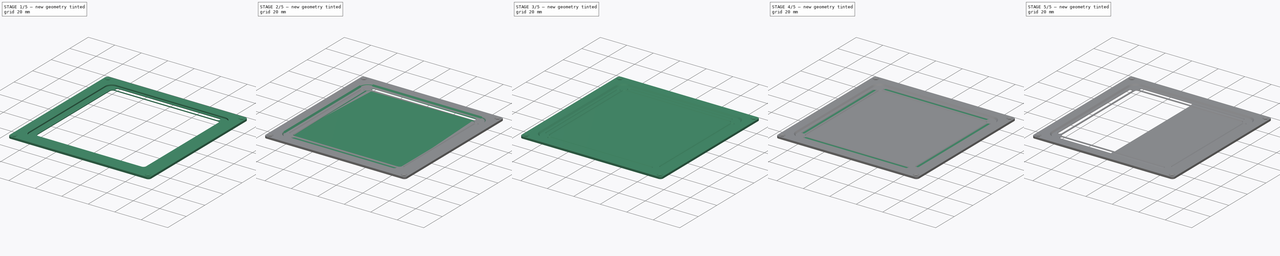
[diagram: build sequence overview — one tinted view per stage of 5, left to right]
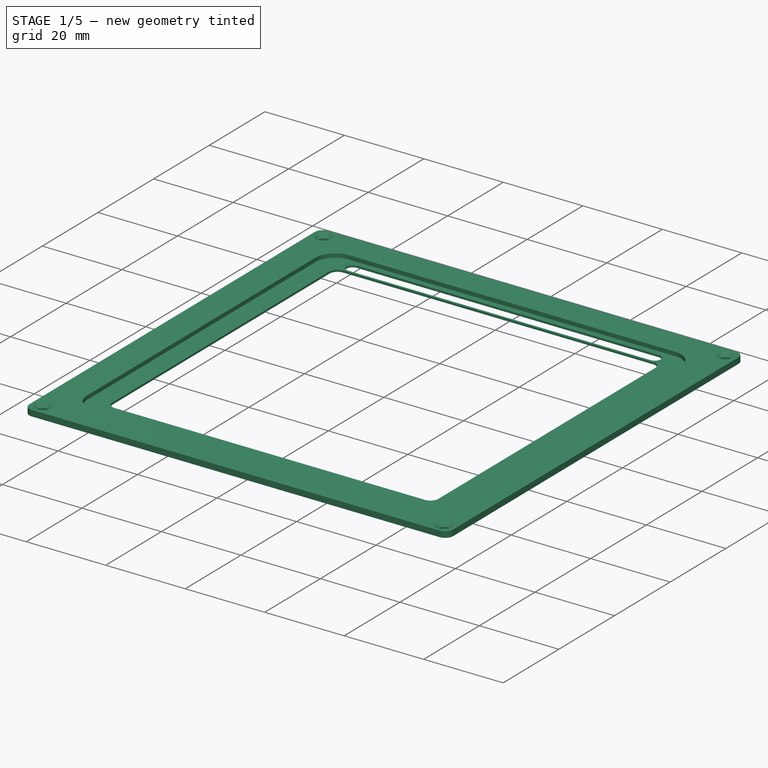
[diagram: stage 1 of 5 — iso view after this stage's code; geometry added in this stage tinted green]
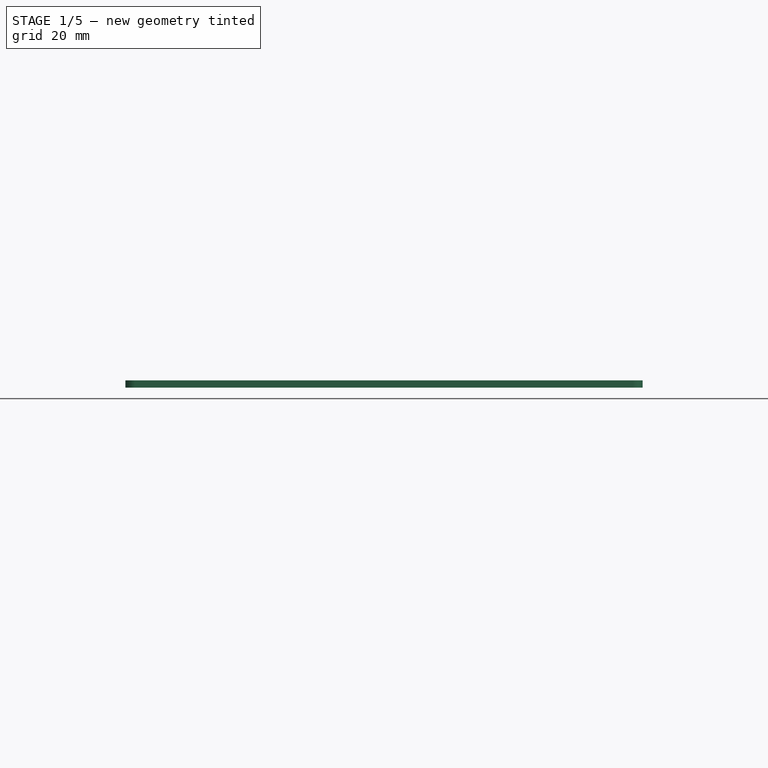
[diagram: stage 1 of 5 — front view after this stage's code; geometry added in this stage tinted green]
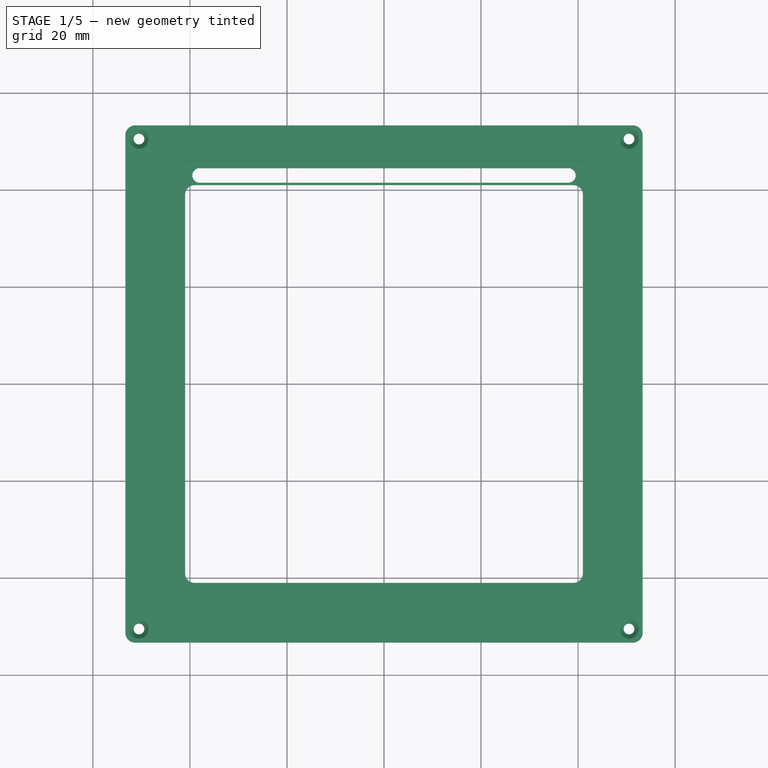
[diagram: stage 1 of 5 — top view after this stage's code; geometry added in this stage tinted green]
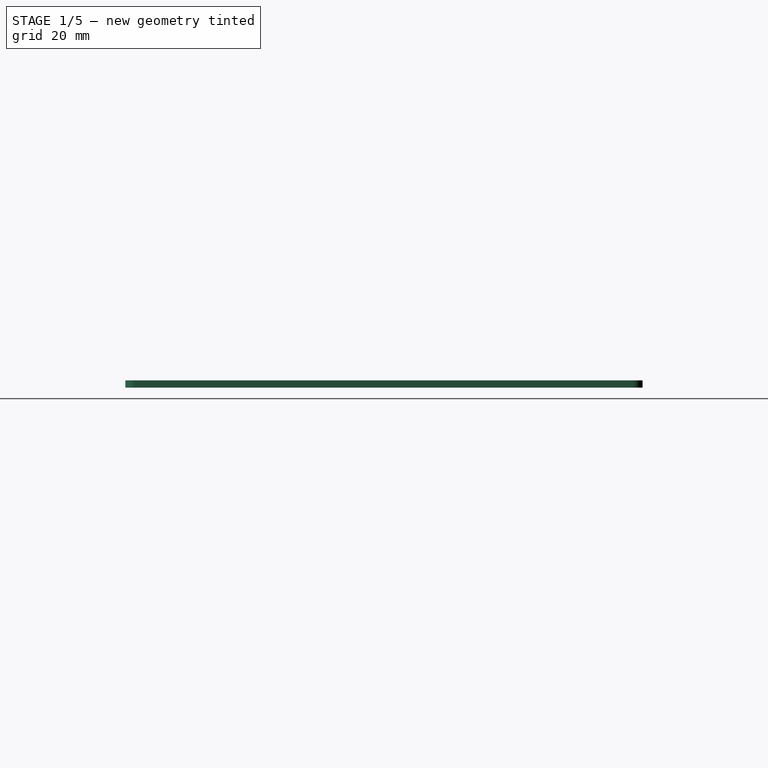
[diagram: stage 1 of 5 — right view after this stage's code; geometry added in this stage tinted green]
FCSTD DOCUMENT  (FreeCAD 0.19R24276 (Git))
Label: XY_Frontpanel_testfit
License: All rights reserved
LicenseURL: http://en.wikipedia.org/wiki/All_rights_reserved
objects: Sketcher::SketchObject×12, PartDesign::Pocket×6, PartDesign::Pad×5, PartDesign::Body×4, PartDesign::Draft×3, PartDesign::PolarPattern×3, PartDesign::Hole×2, App::VRMLObject×2, App::Part×2, PartDesign::Chamfer×2, TechDraw::DrawSVGTemplate×1, PartDesign::Fillet×1, TechDraw::DrawProjGroupItem×1, TechDraw::DrawProjGroup×1, TechDraw::DrawPage×1
note: 57 computed .brp shape members not serialized (recipe doc carries the construction recipe); baked Part::Feature solids carry a one-line shape summary decoded from their .brp

FEATURE [PartDesign::Body] Body001  label="Surface"
  Group = -> [Sketch001,Pad001,Chamfer,Sketch003,Pocket,PolarPattern,Sketch007,Pocket003]
  Origin = -> Origin001
  Tip = -> Pocket003
FEATURE [TechDraw::DrawProjGroupItem] ProjItem  label="Front"
  CoarseView = false
  Direction = (0,0,1)
  Focus = 100
  HardHidden = false
  IsoCount = 0
  IsoHidden = false
  IsoVisible = false
  LockPosition = true
  Perspective = false
  Rotation = 0
  RotationVector = (1,0,0)
  ScaleType = 2
  SeamHidden = false
  SeamVisible = true
  SmoothHidden = false
  SmoothVisible = true
  Source = -> [Body001]
  Type = 0
  X = 0
  XDirection = (1,0,0)
  Y = 0
FEATURE [TechDraw::DrawProjGroup] ProjGroup
  Anchor = -> ProjItem
  AutoDistribute = true
  LockPosition = false
  ProjectionType = 0
  Rotation = 0
  ScaleType = 0
  Source = -> [Body001]
  Views = -> [ProjItem]
  X = 89.4047
  Y = 132.275
  spacingX = 15
  spacingY = 15
FEATURE [TechDraw::DrawPage] Page
  KeepUpdated = true
  NextBalloonIndex = 1
  ProjectionType = 0
  Template = -> Template
  Views = -> [ProjGroup]
FEATURE [Sketcher::SketchObject] Sketch008
  FullyConstrained = true
  MapMode = 5
  Support = -> [XY_Plane005]
  sketch-geometry (22):
    g0: LineSegment StartX=-51.3 StartY=53.3 StartZ=0 EndX=51.3 EndY=53.3 EndZ=0
    g1: LineSegment StartX=53.3 StartY=51.3 StartZ=0 EndX=53.3 EndY=-51.3 EndZ=0
    g2: LineSegment StartX=51.3 StartY=-53.3 StartZ=0 EndX=-51.3 EndY=-53.3 EndZ=0
    g3: LineSegment StartX=-53.3 StartY=-51.3 StartZ=0 EndX=-53.3 EndY=51.3 EndZ=0
    g4: ArcOfCircle CenterX=-51.3 CenterY=51.3 CenterZ=0 NormalX=0 NormalY=0 NormalZ=1 AngleXU=0 Radius=2 StartAngle=1.5708 EndAngle=3.14159
    g5: ArcOfCircle CenterX=51.3 CenterY=51.3 CenterZ=0 NormalX=0 NormalY=0 NormalZ=1 AngleXU=0 Radius=2 StartAngle=1e-16 EndAngle=1.5708
    g6: ArcOfCircle CenterX=51.3 CenterY=-51.3 CenterZ=0 NormalX=0 NormalY=0 NormalZ=1 AngleXU=0 Radius=2 StartAngle=4.71239 EndAngle=6.28319
    g7: ArcOfCircle CenterX=-51.3 CenterY=-51.3 CenterZ=0 NormalX=0 NormalY=0 NormalZ=1 AngleXU=0 Radius=2 StartAngle=3.14159 EndAngle=4.71239
    g8: LineSegment StartX=-51.3 StartY=51.3 StartZ=0 EndX=0 EndY=0 EndZ=0
    g9: LineSegment StartX=0 StartY=0 StartZ=0 EndX=51.3 EndY=51.3 EndZ=0
    g10: LineSegment StartX=0 StartY=0 StartZ=0 EndX=-51.3 EndY=-51.3 EndZ=0
    g11: LineSegment StartX=-39 StartY=41 StartZ=0 EndX=39 EndY=41 EndZ=0
    g12: LineSegment StartX=41 StartY=39 StartZ=0 EndX=41 EndY=-39 EndZ=0
    g13: LineSegment StartX=39 StartY=-41 StartZ=0 EndX=-39 EndY=-41 EndZ=0
    g14: LineSegment StartX=-41 StartY=-39 StartZ=0 EndX=-41 EndY=39 EndZ=0
    g15: ArcOfCircle CenterX=-39 CenterY=39 CenterZ=0 NormalX=0 NormalY=0 NormalZ=1 AngleXU=0 Radius=2 StartAngle=1.5708 EndAngle=3.14159
    g16: ArcOfCircle CenterX=39 CenterY=39 CenterZ=0 NormalX=0 NormalY=0 NormalZ=1 AngleXU=0 Radius=2 StartAngle=0 EndAngle=1.5708
    g17: ArcOfCircle CenterX=39 CenterY=-39 CenterZ=0 NormalX=0 NormalY=0 NormalZ=1 AngleXU=0 Radius=2 StartAngle=4.71239 EndAngle=6.28319
    g18: ArcOfCircle CenterX=-39 CenterY=-39 CenterZ=0 NormalX=0 NormalY=0 NormalZ=1 AngleXU=0 Radius=2 StartAngle=3.14159 EndAngle=4.71239
    g19: LineSegment StartX=-39 StartY=39 StartZ=0 EndX=0 EndY=0 EndZ=0
    g20: LineSegment StartX=0 StartY=0 StartZ=0 EndX=39 EndY=39 EndZ=0
    g21: LineSegment StartX=-39 StartY=-39 StartZ=0 EndX=0 EndY=0 EndZ=0
  constraints (52):
    c: Horizontal(g0)
    c: Horizontal(g2)
    c: Vertical(g1)
    c: Vertical(g3)
    c: Tangent(g3,g4) = 1.5708
    c: Tangent(g0,g4) = 1.5708
    c: Tangent(g0,g5) = 1.5708
    c: Tangent(g1,g5) = 1.5708
    c: Tangent(g1,g6) = 1.5708
    c: Tangent(g2,g6) = 1.5708
    c: Tangent(g2,g7) = 1.5708
    c: Tangent(g3,g7) = 1.5708
    c: Coincident(g8,g4)
    c: Coincident(g8,g9)
    c: Coincident(g9,g5)
    c: Coincident(g8,g-1)
    c: Coincident(g10,g-1)
    c: Coincident(g10,g7)
    c: Equal(g10,g8)
    c: Equal(g8,g9)
    c: Equal(g0,g3)
    c: Equal(g4,g5)
    c: Equal(g5,g6)
    c: Equal(g6,g7)
    c: Radius(g4) = 2
    c: DistanceX(g3,g1) = 106.6
    c: Horizontal(g11)
    c: Horizontal(g13)
    c: Vertical(g12)
    c: Vertical(g14)
    c: Tangent(g14,g15) = 1.5708
    c: Tangent(g11,g15) = 1.5708
    c: Tangent(g11,g16) = 1.5708
    c: Tangent(g12,g16) = 1.5708
    c: Tangent(g12,g17) = 1.5708
    c: Tangent(g13,g17) = 1.5708
    c: Tangent(g13,g18) = 1.5708
    c: Tangent(g14,g18) = 1.5708
    c: Coincident(g19,g15)
    c: Coincident(g19,g-1)
    c: Coincident(g19,g20)
    c: Coincident(g20,g16)
    c: Coincident(g21,g18)
    c: Coincident(g21,g-1)
    c: Equal(g21,g19)
    c: Equal(g19,g20)
    c: Equal(g14,g11)
    c: Equal(g15,g16)
    c: Equal(g16,g17)
    c: Equal(g17,g18)
    c: Radius(g15) = 2
    c: DistanceX(g14,g12) = 82
FEATURE [PartDesign::Pad] Pad004
  AllowMultiFace = false
  Direction = (1,1,1)
  Length = 1.5
  Length2 = 100
  Profile = -> Sketch008
  Type = 0
FEATURE [Sketcher::SketchObject] Sketch009
  FullyConstrained = true
  MapMode = 5
  Placement = pos=(0,0,1.5) rot=(0,0,1;0rad)
  sketch-geometry (9):
    g0: LineSegment StartX=-50.5 StartY=50.5 StartZ=0 EndX=-50.5 EndY=-50.5 EndZ=0
    g1: LineSegment StartX=-50.5 StartY=-50.5 StartZ=0 EndX=50.5 EndY=-50.5 EndZ=0
    g2: LineSegment StartX=50.5 StartY=-50.5 StartZ=0 EndX=50.5 EndY=50.5 EndZ=0
    g3: LineSegment StartX=50.5 StartY=50.5 StartZ=0 EndX=-50.5 EndY=50.5 EndZ=0
    g4: Circle CenterX=0 CenterY=0 CenterZ=0 NormalX=0 NormalY=0 NormalZ=1 AngleXU=0 Radius=71.4178
    g5: Circle CenterX=-50.5 CenterY=50.5 CenterZ=0 NormalX=0 NormalY=0 NormalZ=1 AngleXU=0 Radius=5
    g6: Circle CenterX=50.5 CenterY=50.5 CenterZ=0 NormalX=0 NormalY=0 NormalZ=1 AngleXU=0 Radius=5
    g7: Circle CenterX=50.5 CenterY=-50.5 CenterZ=0 NormalX=0 NormalY=0 NormalZ=1 AngleXU=0 Radius=5
    g8: Circle CenterX=-50.5 CenterY=-50.5 CenterZ=0 NormalX=0 NormalY=0 NormalZ=1 AngleXU=0 Radius=5
  constraints (22):
    c: Coincident(g0,g1)
    c: Coincident(g1,g2)
    c: Coincident(g2,g3)
    c: Coincident(g3,g0)
    c: Equal(g0,g1)
    c: Equal(g0,g2)
    c: Equal(g0,g3)
    c: PointOnObject(g0,g4)
    c: PointOnObject(g1,g4)
    c: PointOnObject(g2,g4)
    c: PointOnObject(g3,g4)
    c: Horizontal(g3)
    c: Coincident(g4,g-1)
    c: Coincident(g5,g0)
    c: Coincident(g6,g2)
    c: Coincident(g7,g1)
    c: Coincident(g8,g0)
    c: DistanceX(g3,g3) = 101
    c: Diameter(g5) = 10
    c: Equal(g5,g6)
    c: Equal(g5,g7)
    c: Equal(g5,g8)
FEATURE [PartDesign::Hole] Hole001
  AllowMultiFace = false
  BaseFeature = -> Pad004
  Depth = 25
  DepthType = 1
  Diameter = 2.2
  DrillForDepth = false
  DrillPoint = 0
  DrillPointAngle = 118
  HoleCutCountersinkAngle = 90
  HoleCutCustomValues = false
  HoleCutDepth = 0
  HoleCutDiameter = 4
  HoleCutType = 2
  ModelActualThread = false
  Profile = -> Sketch009
  Tapered = false
  TaperedAngle = 90
  ThreadAngle = 0
  ThreadClass = 0
  ThreadCutOffInner = 0
  ThreadCutOffOuter = 0
  ThreadDirection = 0
  ThreadFit = 0
  ThreadPitch = 0
  ThreadSize = 0
  ThreadType = 0
  Threaded = false
FEATURE [Sketcher::SketchObject] Sketch010
  FullyConstrained = true
  MapMode = 5
  Placement = pos=(0,0,1.5) rot=(0,0,1;0rad)
  Support = -> [Hole001]
  sketch-geometry (11):
    g0: LineSegment StartX=-41 StartY=46 StartZ=0 EndX=41 EndY=46 EndZ=0
    g1: LineSegment StartX=46 StartY=41 StartZ=0 EndX=46 EndY=-41 EndZ=0
    g2: LineSegment StartX=41 StartY=-46 StartZ=0 EndX=-41 EndY=-46 EndZ=0
    g3: LineSegment StartX=-46 StartY=-41 StartZ=0 EndX=-46 EndY=41 EndZ=0
    g4: ArcOfCircle CenterX=-41 CenterY=41 CenterZ=0 NormalX=0 NormalY=0 NormalZ=1 AngleXU=0 Radius=5 StartAngle=1.5708 EndAngle=3.14159
    g5: ArcOfCircle CenterX=41 CenterY=41 CenterZ=0 NormalX=0 NormalY=0 NormalZ=1 AngleXU=0 Radius=5 StartAngle=1e-16 EndAngle=1.5708
    g6: ArcOfCircle CenterX=41 CenterY=-41 CenterZ=0 NormalX=0 NormalY=0 NormalZ=1 AngleXU=0 Radius=5 StartAngle=4.71239 EndAngle=6.28319
    g7: ArcOfCircle CenterX=-41 CenterY=-41 CenterZ=0 NormalX=0 NormalY=0 NormalZ=1 AngleXU=0 Radius=5 StartAngle=3.14159 EndAngle=4.71239
    g8: LineSegment StartX=-41 StartY=41 StartZ=0 EndX=0 EndY=0 EndZ=0
    g9: LineSegment StartX=0 StartY=0 StartZ=0 EndX=41 EndY=41 EndZ=0
    g10: LineSegment StartX=0 StartY=0 StartZ=0 EndX=-41 EndY=-41 EndZ=0
  constraints (26):
    c: Horizontal(g0)
    c: Horizontal(g2)
    c: Vertical(g1)
    c: Vertical(g3)
    c: Tangent(g3,g4) = 1.5708
    c: Tangent(g0,g4) = 1.5708
    c: Tangent(g0,g5) = 1.5708
    c: Tangent(g1,g5) = 1.5708
    c: Tangent(g1,g6) = 1.5708
    c: Tangent(g2,g6) = 1.5708
    c: Tangent(g2,g7) = 1.5708
    c: Tangent(g3,g7) = 1.5708
    c: Radius(g7) = 5
    c: Equal(g7,g4)
    c: Equal(g7,g5)
    c: Equal(g7,g6)
    c: Equal(g0,g3)
    c: DistanceX(g3,g1) = 92
    c: Coincident(g8,g4)
    c: Coincident(g8,g-1)
    c: Coincident(g8,g9)
    c: Coincident(g9,g5)
    c: Coincident(g-1,g10)
    c: Coincident(g10,g7)
    c: Equal(g10,g8)
    c: Equal(g8,g9)
FEATURE [PartDesign::Pocket] Pocket004
  BaseFeature = -> Hole001
  Length = 1
  Length2 = 100
  Profile = -> Sketch010
  Type = 0
FEATURE [Sketcher::SketchObject] Sketch011
  FullyConstrained = true
  MapMode = 5
  Placement = pos=(0,0,0.5) rot=(0,0,1;0rad)
  Support = -> [Pocket004]
  sketch-geometry (6):
    g0: LineSegment StartX=-38 StartY=43 StartZ=0 EndX=0 EndY=0 EndZ=0
    g1: LineSegment StartX=0 StartY=0 StartZ=0 EndX=38 EndY=43 EndZ=0
    g2: ArcOfCircle CenterX=-38 CenterY=43 CenterZ=0 NormalX=0 NormalY=0 NormalZ=1 AngleXU=0 Radius=1.5 StartAngle=1.5708 EndAngle=4.71239
    g3: ArcOfCircle CenterX=38 CenterY=43 CenterZ=0 NormalX=0 NormalY=0 NormalZ=1 AngleXU=0 Radius=1.5 StartAngle=4.71239 EndAngle=7.85398
    g4: LineSegment StartX=-38 StartY=41.5 StartZ=0 EndX=38 EndY=41.5 EndZ=0
    g5: LineSegment StartX=-38 StartY=44.5 StartZ=0 EndX=38 EndY=44.5 EndZ=0
  constraints (14):
    c: Coincident(g0,g-1)
    c: Coincident(g0,g1)
    c: Tangent(g2,g5) = 1.5708
    c: Tangent(g2,g4) = -1.5708
    c: Tangent(g4,g3) = -1.5708
    c: Tangent(g5,g3) = 1.5708
    c: Horizontal(g4)
    c: Equal(g2,g3)
    c: Coincident(g2,g0)
    c: Coincident(g1,g3)
    c: Equal(g1,g0)
    c: DistanceX(g5,g5) = 76
    c: Diameter(g2) = 3
    c: DistanceY(g-1,g2) = 43
FEATURE [PartDesign::Pocket] Pocket005
  BaseFeature = -> Pocket004
  Length = 5
  Length2 = 100
  Profile = -> Sketch011
  Type = 0
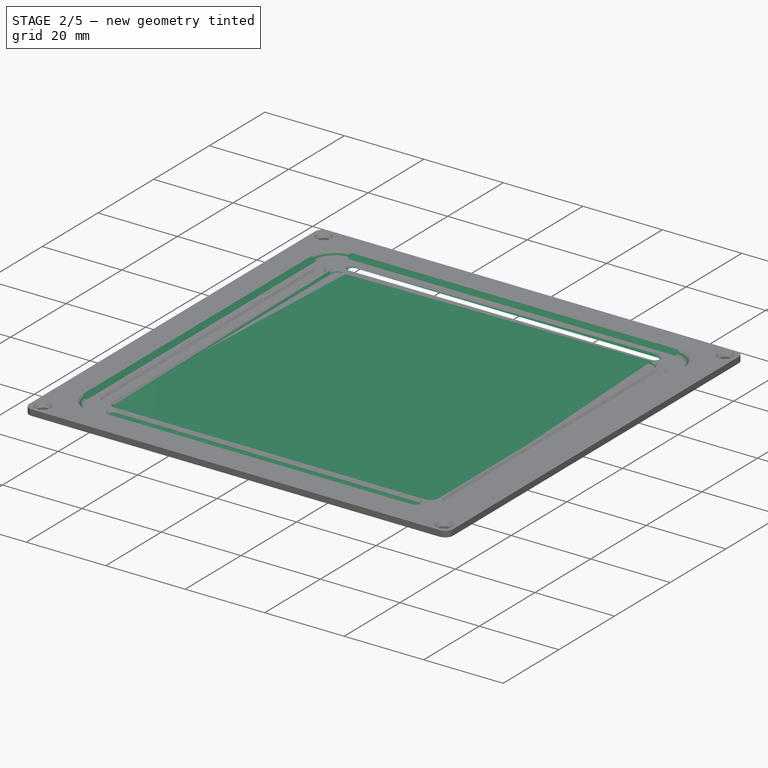
[diagram: stage 2 of 5 — iso view after this stage's code; geometry added in this stage tinted green]
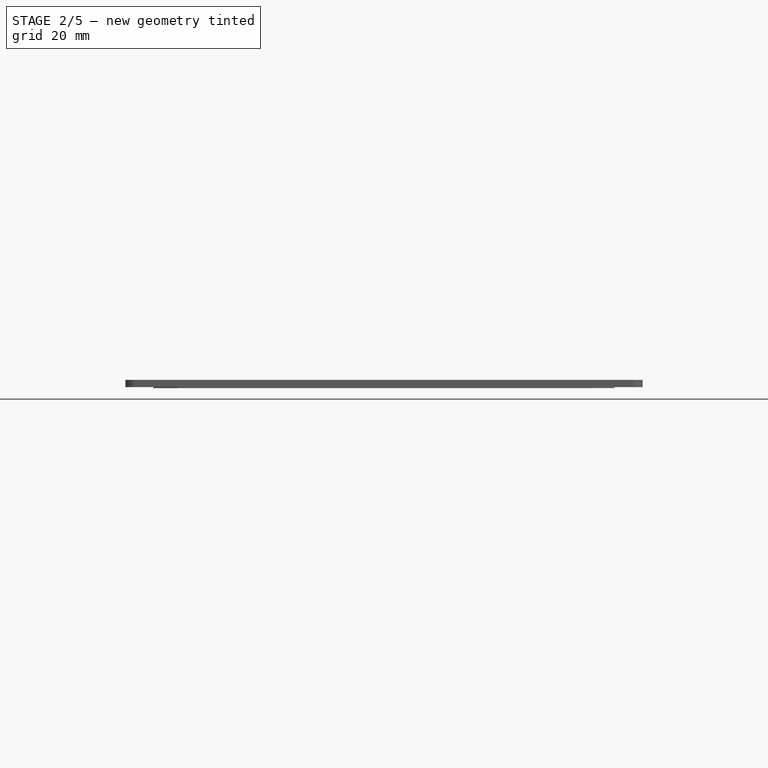
[diagram: stage 2 of 5 — front view after this stage's code; geometry added in this stage tinted green]
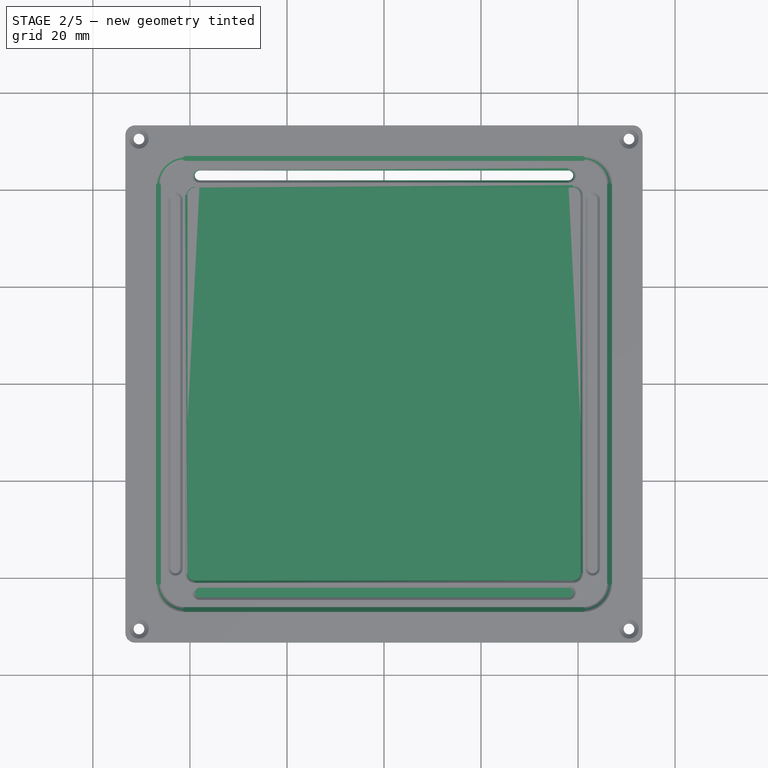
[diagram: stage 2 of 5 — top view after this stage's code; geometry added in this stage tinted green]
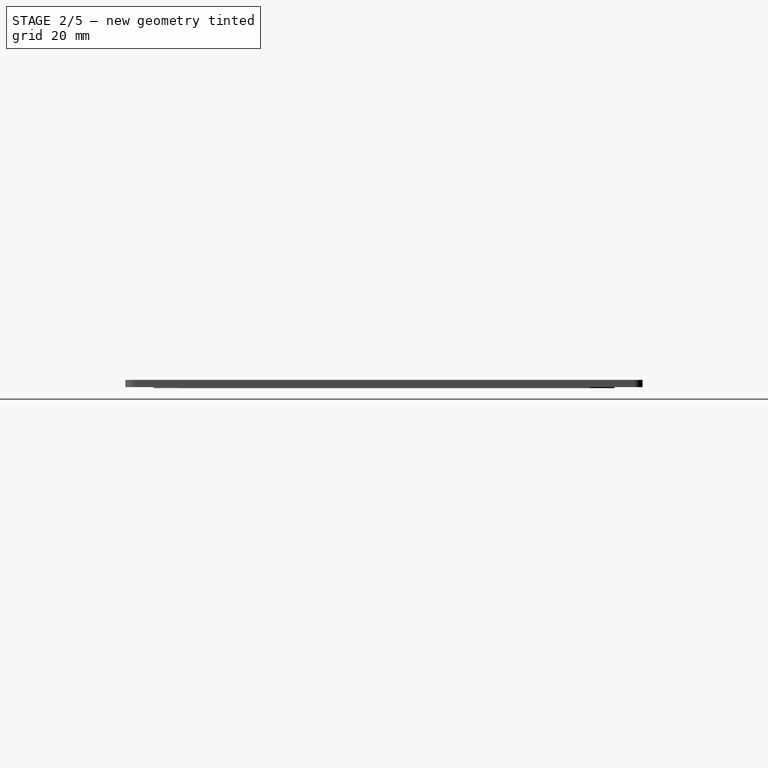
[diagram: stage 2 of 5 — right view after this stage's code; geometry added in this stage tinted green]
FEATURE [Sketcher::SketchObject] Sketch001
  FullyConstrained = true
  MapMode = 5
  Support = -> [XY_Plane001]
  sketch-geometry (5):
    g0: LineSegment StartX=47.5 StartY=-47.5 StartZ=0 EndX=47.5 EndY=47.5 EndZ=0
    g1: LineSegment StartX=47.5 StartY=47.5 StartZ=0 EndX=-47.5 EndY=47.5 EndZ=0
    g2: LineSegment StartX=-47.5 StartY=47.5 StartZ=0 EndX=-47.5 EndY=-47.5 EndZ=0
    g3: LineSegment StartX=-47.5 StartY=-47.5 StartZ=0 EndX=47.5 EndY=-47.5 EndZ=0
    g4: Circle CenterX=0 CenterY=0 CenterZ=0 NormalX=0 NormalY=0 NormalZ=1 AngleXU=0 Radius=67.1751
  constraints (14):
    c: Coincident(g0,g1)
    c: Coincident(g1,g2)
    c: Coincident(g2,g3)
    c: Coincident(g3,g0)
    c: Equal(g0,g1)
    c: Equal(g0,g2)
    c: Equal(g0,g3)
    c: PointOnObject(g0,g4)
    c: PointOnObject(g1,g4)
    c: PointOnObject(g2,g4)
    c: PointOnObject(g3,g4)
    c: Horizontal(g1)
    c: Coincident(g4,g-1)
    c: DistanceX(g1,g1) = 95
FEATURE [PartDesign::Pad] Pad001
  AllowMultiFace = false
  Direction = (1,1,1)
  Length = 0.2
  Length2 = 100
  Profile = -> Sketch001
  Reversed = true
  Type = 0
FEATURE [PartDesign::Body] Body  label="Alu"
  Group = -> [Sketch,Pad,Draft,Sketch002,Hole]
  Origin = -> Origin
  Tip = -> Hole
FEATURE [App::VRMLObject] XY_LED
FEATURE [App::VRMLObject] XY_TOUCH
FEATURE [App::Part] Part  label="LED"
  Group = -> [XY_LED]
  Origin = -> Origin002
  Placement = pos=(0,0,-2) rot=(0,0,1;0rad)
FEATURE [App::Part] Part001  label="TOUCH"
  Group = -> [XY_TOUCH]
  Origin = -> Origin003
  Placement = pos=(0,0,-0.7) rot=(0,0,1;0rad)
FEATURE [PartDesign::Chamfer] Chamfer
  Angle = 45
  Base = -> Pad001 [Edge5,Edge2,Edge8,Edge1]
  BaseFeature = -> Pad001
  ChamferType = 0
  FlipDirection = false
  Size = 5
  Size2 = 1
  SupportTransform = false
FEATURE [Sketcher::SketchObject] Sketch003
  FullyConstrained = true
  MapMode = 5
  Support = -> [Chamfer]
  sketch-geometry (6):
    g0: ArcOfCircle CenterX=-38 CenterY=43 CenterZ=0 NormalX=0 NormalY=0 NormalZ=1 AngleXU=0 Radius=1.5 StartAngle=1.5708 EndAngle=4.71239
    g1: ArcOfCircle CenterX=38 CenterY=43 CenterZ=0 NormalX=0 NormalY=0 NormalZ=1 AngleXU=0 Radius=1.5 StartAngle=4.71239 EndAngle=7.85398
    g2: LineSegment StartX=-38 StartY=41.5 StartZ=0 EndX=38 EndY=41.5 EndZ=0
    g3: LineSegment StartX=-38 StartY=44.5 StartZ=0 EndX=38 EndY=44.5 EndZ=0
    g4: LineSegment StartX=-38 StartY=43 StartZ=0 EndX=0 EndY=0 EndZ=0
    g5: LineSegment StartX=0 StartY=0 StartZ=0 EndX=38 EndY=43 EndZ=0
  constraints (14):
    c: Tangent(g0,g3)
    c: Tangent(g0,g2)
    c: Tangent(g2,g1)
    c: Tangent(g3,g1)
    c: Horizontal(g2)
    c: Equal(g0,g1)
    c: DistanceY(g-1,g0) = 43
    c: DistanceY(g0,g0) = 3
    c: DistanceX(g0,g1) = 76
    c: Coincident(g4,g0)
    c: Coincident(g4,g-1)
    c: Coincident(g4,g5)
    c: Coincident(g5,g1)
    c: Equal(g5,g4)
FEATURE [PartDesign::Pocket] Pocket
  BaseFeature = -> Chamfer
  Length = 5
  Length2 = 100
  Profile = -> Sketch003
  Type = 0
FEATURE [PartDesign::PolarPattern] PolarPattern002
  Angle = 360
  Axis = -> Sketch011 [N_Axis]
  BaseFeature = -> Pocket005
  Occurrences = 4
  Originals = -> [Pocket005]
FEATURE [PartDesign::Draft] Draft002
  Angle = 45
  Base = -> PolarPattern002 [Face43,Face44,Face42,Face25,Face27,Face23,Face29,Face45,Face46,Face28,Face47,Face26,Face48,Face24,Face22,Face49,Face18,Face17,Face14,Face12,Face13,Face32,Face30,Face31,Face36,Face34,Face35,Face20,Face37,Face19,Face33,Face15]
  BaseFeature = -> PolarPattern002
  NeutralPlane = -> PolarPattern002 [Face51]
  Reversed = true
  SupportTransform = false
FEATURE [PartDesign::Body] Body003  label="Alu001"
  Group = -> [Sketch008,Pad004,Sketch009,Hole001,Sketch010,Pocket004,Sketch011,Pocket005,PolarPattern002,Draft002]
  Origin = -> Origin005
  Tip = -> Draft002
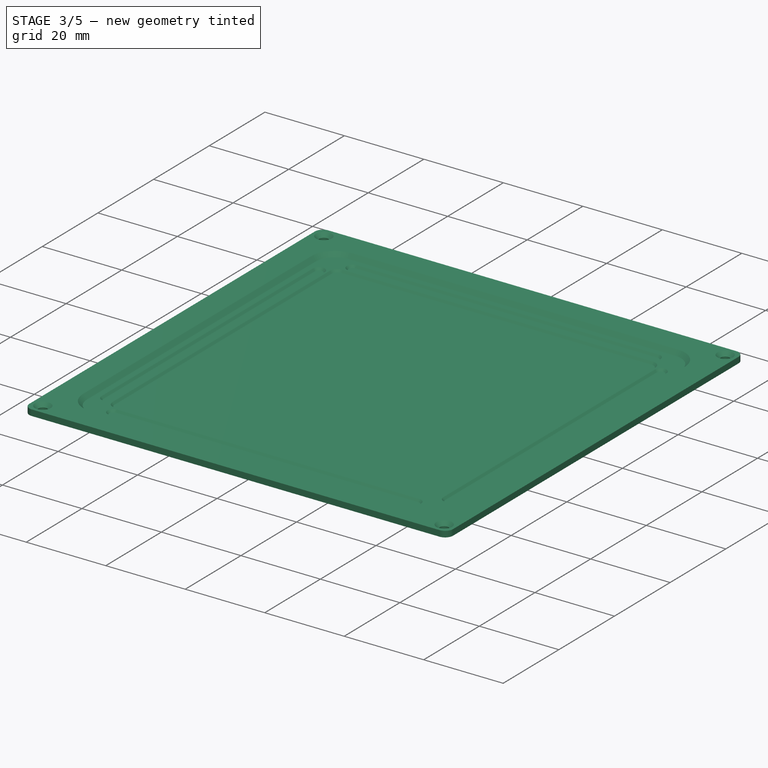
[diagram: stage 3 of 5 — iso view after this stage's code; geometry added in this stage tinted green]
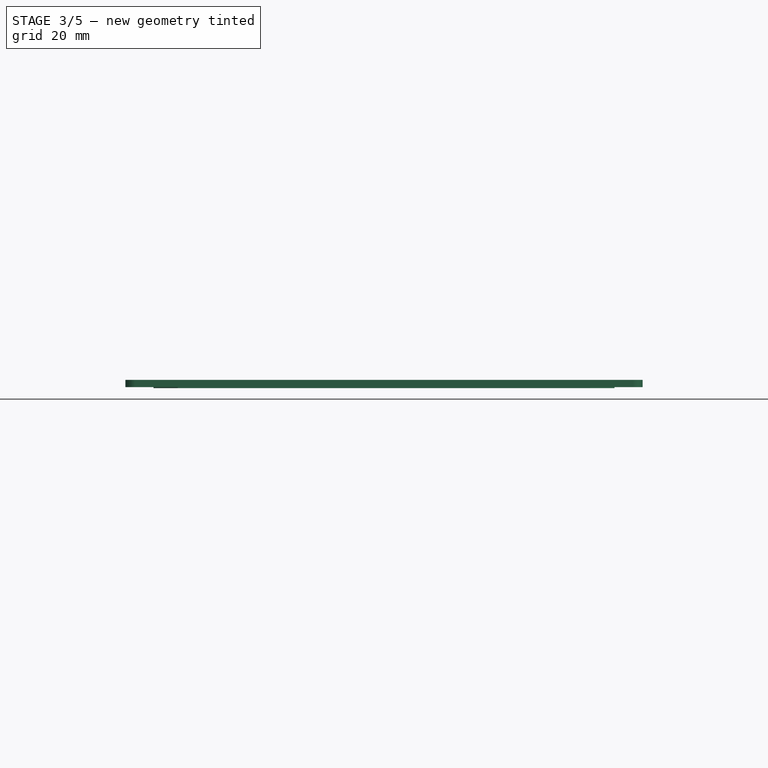
[diagram: stage 3 of 5 — front view after this stage's code; geometry added in this stage tinted green]
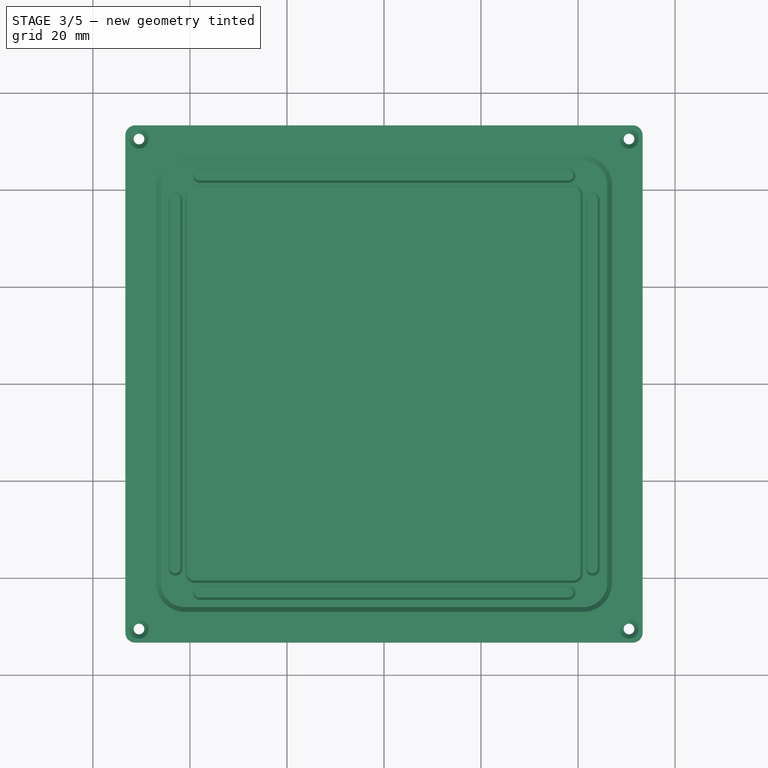
[diagram: stage 3 of 5 — top view after this stage's code; geometry added in this stage tinted green]
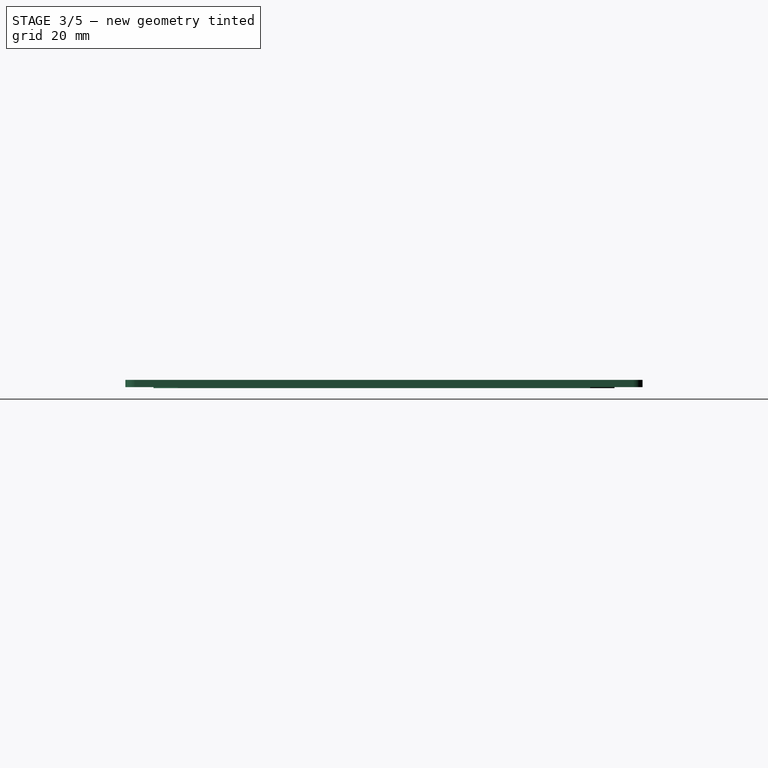
[diagram: stage 3 of 5 — right view after this stage's code; geometry added in this stage tinted green]
FEATURE [PartDesign::PolarPattern] PolarPattern
  Angle = 360
  Axis = -> Sketch003 [N_Axis]
  BaseFeature = -> Pocket
  Occurrences = 4
  Originals = -> [Pocket]
FEATURE [TechDraw::DrawSVGTemplate] Template
  EditableTexts = Designed_by_Name=Designed by Name; Drawing_number=Drawing number; FC-Date=Date; FC-SC=Scale; FC-SH=Sheet; FC-Title=Title; Subtitle=Subtitle; Weight=Weight
  Height = 210
  Orientation = 1
  Width = 297
FEATURE [Sketcher::SketchObject] Sketch004
  FullyConstrained = false
  MapMode = 5
  Support = -> [XY_Plane004]
  sketch-geometry (5):
    g0: LineSegment StartX=47.5 StartY=-47.5 StartZ=0 EndX=47.5 EndY=47.5 EndZ=0
    g1: LineSegment StartX=47.5 StartY=47.5 StartZ=0 EndX=-47.5 EndY=47.5 EndZ=0
    g2: LineSegment StartX=-47.5 StartY=47.5 StartZ=0 EndX=-47.5 EndY=-47.5 EndZ=0
    g3: LineSegment StartX=-47.5 StartY=-47.5 StartZ=0 EndX=47.5 EndY=-47.5 EndZ=0
    g4: Circle CenterX=0 CenterY=0 CenterZ=0 NormalX=0 NormalY=0 NormalZ=1 AngleXU=0 Radius=67.1751
  constraints (14):
    c: Coincident(g0,g1)
    c: Coincident(g1,g2)
    c: Coincident(g2,g3)
    c: Coincident(g3,g0)
    c: Equal(g0,g1)
    c: Equal(g0,g2)
    c: Equal(g0,g3)
    c: PointOnObject(g0,g4)
    c: PointOnObject(g1,g4)
    c: PointOnObject(g2,g4)
    c: PointOnObject(g3,g4)
    c: Horizontal(g1)
    c: Coincident(g4,g-1)
    c: DistanceX(g1,g1) = 95
FEATURE [PartDesign::Pad] Pad002
  AllowMultiFace = false
  Direction = (1,1,1)
  Length = 0.2
  Length2 = 100
  Profile = -> Sketch004
  Reversed = true
  Type = 0
FEATURE [PartDesign::Chamfer] Chamfer001
  Angle = 45
  Base = -> Pad002 [Edge5,Edge2,Edge8,Edge1]
  BaseFeature = -> Pad002
  ChamferType = 0
  FlipDirection = false
  Size = 5
  Size2 = 1
  SupportTransform = false
FEATURE [PartDesign::Body] Body002  label="Surface001"
  Group = -> [Sketch004,Pad002,Chamfer001,Sketch005,Pad003,PolarPattern001,Draft001,Fillet,Pocket001,Sketch006,Pocket002]
  Origin = -> Origin004
  Tip = -> Pocket002
FEATURE [Sketcher::SketchObject] Sketch007
  FullyConstrained = false
  MapMode = 5
  Placement = pos=(0,0,0) rot=(0.57735,0.57735,0.57735;2.0944rad)
  Support = -> [YZ_Plane001]
  sketch-geometry (4):
    g0: LineSegment StartX=-67.1532 StartY=17.8275 StartZ=0 EndX=62.4538 EndY=17.8275 EndZ=0
    g1: LineSegment StartX=62.4538 StartY=17.8275 StartZ=0 EndX=62.4538 EndY=-6.52196 EndZ=0
    g2: LineSegment StartX=62.4538 StartY=-6.52196 StartZ=0 EndX=-67.1532 EndY=-6.52196 EndZ=0
    g3: LineSegment StartX=-67.1532 StartY=-6.52196 StartZ=0 EndX=-67.1532 EndY=17.8275 EndZ=0
  constraints (8):
    c: Coincident(g0,g1)
    c: Coincident(g1,g2)
    c: Coincident(g2,g3)
    c: Coincident(g3,g0)
    c: Horizontal(g0)
    c: Horizontal(g2)
    c: Vertical(g1)
    c: Vertical(g3)
FEATURE [PartDesign::Pocket] Pocket003
  BaseFeature = -> PolarPattern
  Length = 5
  Length2 = 100
  Profile = -> Sketch007
  Type = 1
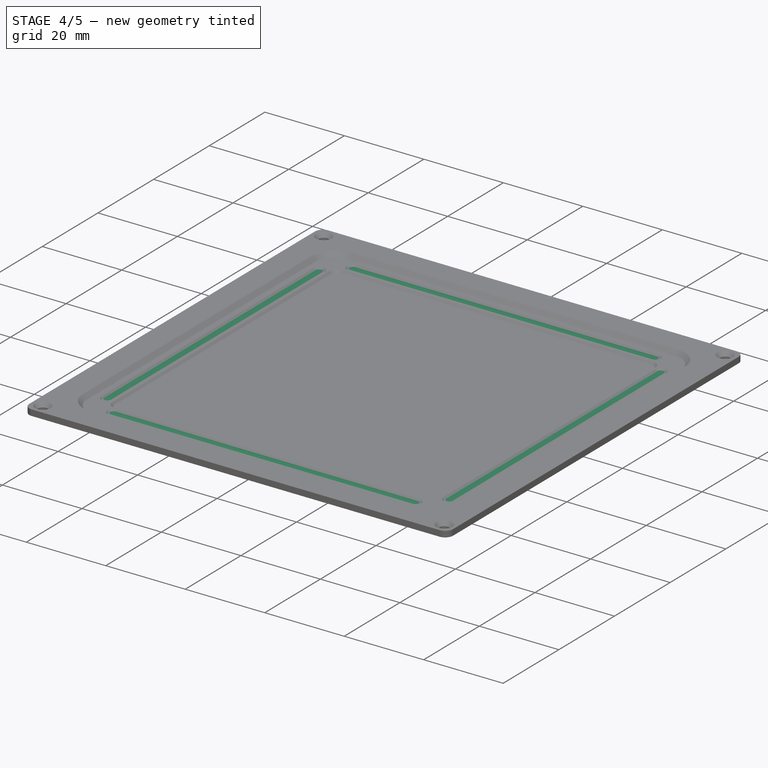
[diagram: stage 4 of 5 — iso view after this stage's code; geometry added in this stage tinted green]
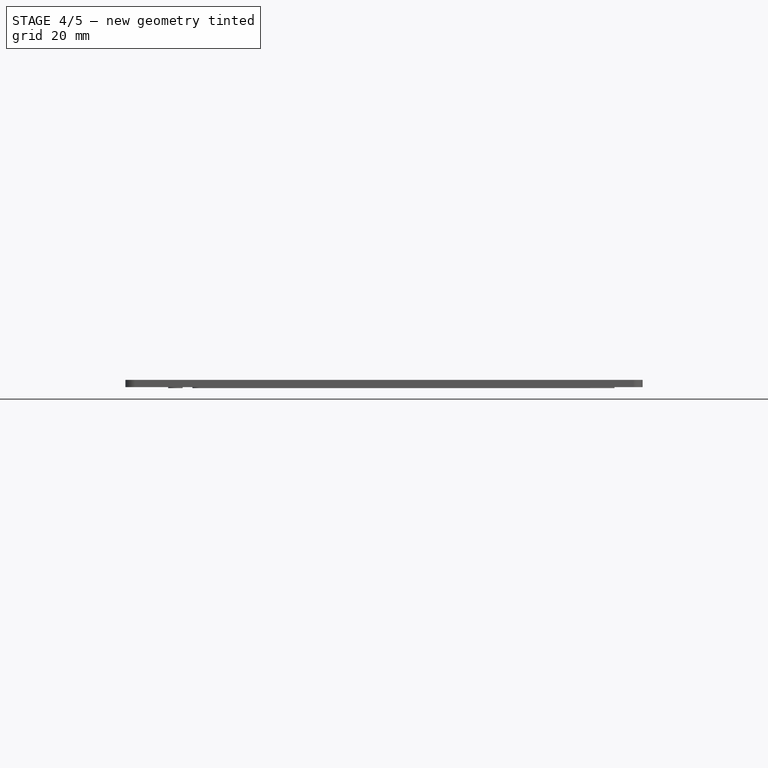
[diagram: stage 4 of 5 — front view after this stage's code; geometry added in this stage tinted green]
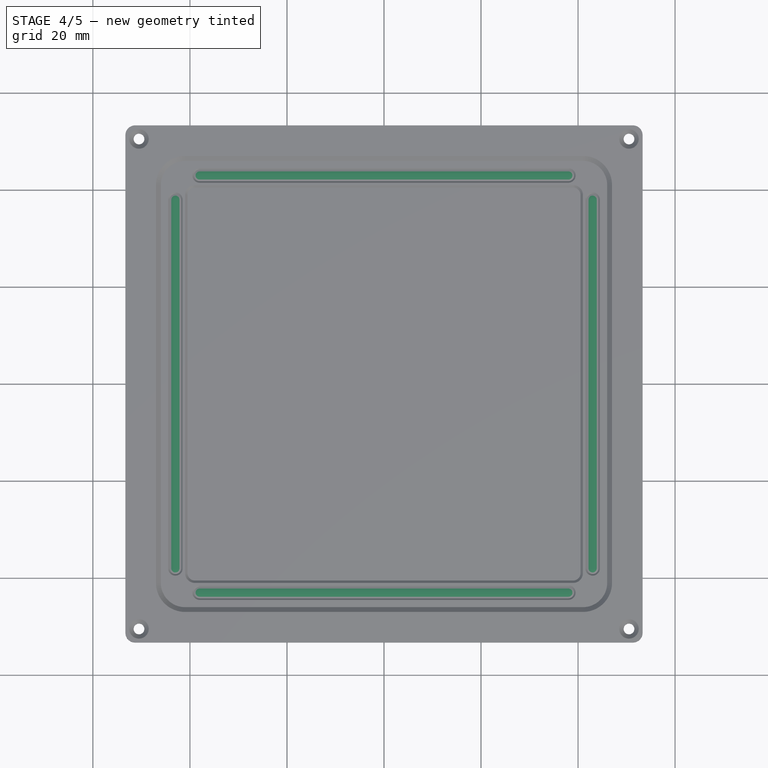
[diagram: stage 4 of 5 — top view after this stage's code; geometry added in this stage tinted green]
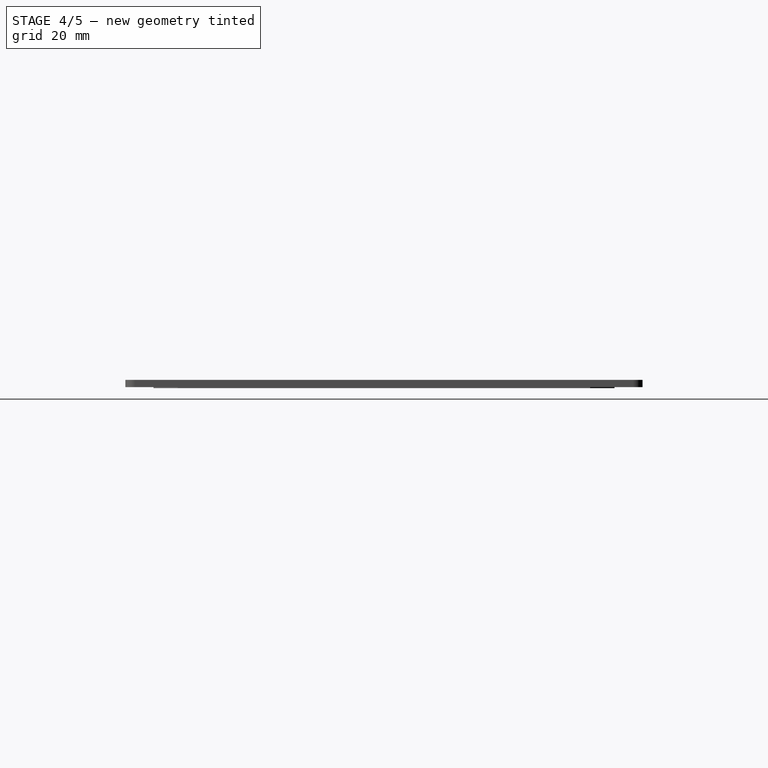
[diagram: stage 4 of 5 — right view after this stage's code; geometry added in this stage tinted green]
FEATURE [Sketcher::SketchObject] Sketch005
  FullyConstrained = false
  MapMode = 5
  Support = -> [Chamfer001]
  sketch-geometry (6):
    g0: ArcOfCircle CenterX=-38 CenterY=43 CenterZ=0 NormalX=0 NormalY=0 NormalZ=1 AngleXU=0 Radius=1.5 StartAngle=1.5708 EndAngle=4.71239
    g1: ArcOfCircle CenterX=38 CenterY=43 CenterZ=0 NormalX=0 NormalY=0 NormalZ=1 AngleXU=0 Radius=1.5 StartAngle=4.71239 EndAngle=7.85398
    g2: LineSegment StartX=-38 StartY=41.5 StartZ=0 EndX=38 EndY=41.5 EndZ=0
    g3: LineSegment StartX=-38 StartY=44.5 StartZ=0 EndX=38 EndY=44.5 EndZ=0
    g4: LineSegment StartX=-38 StartY=43 StartZ=0 EndX=0 EndY=0 EndZ=0
    g5: LineSegment StartX=0 StartY=0 StartZ=0 EndX=38 EndY=43 EndZ=0
  constraints (14):
    c: Tangent(g0,g3)
    c: Tangent(g0,g2)
    c: Tangent(g2,g1)
    c: Tangent(g3,g1)
    c: Horizontal(g2)
    c: Equal(g0,g1)
    c: DistanceY(g-1,g0) = 43
    c: DistanceY(g0,g0) = 3
    c: DistanceX(g0,g1) = 76
    c: Coincident(g4,g0)
    c: Coincident(g4,g-1)
    c: Coincident(g4,g5)
    c: Coincident(g5,g1)
    c: Equal(g5,g4)
FEATURE [PartDesign::Pad] Pad003
  BaseFeature = -> Chamfer001
  Direction = (1,1,1)
  Length = 0.4
  Length2 = 100
  Profile = -> Sketch005
  Type = 0
FEATURE [PartDesign::PolarPattern] PolarPattern001
  Angle = 360
  Axis = -> Sketch005 [N_Axis]
  BaseFeature = -> Pad003
  Occurrences = 4
  Originals = -> [Pad003]
FEATURE [PartDesign::Draft] Draft001
  Angle = 60
  Base = -> PolarPattern001 [Face12,Face11,Face21,Face22,Face26,Face25,Face19,Face23,Face18,Face17,Face15,Face14,Face20,Face24,Face16,Face13]
  BaseFeature = -> PolarPattern001
  NeutralPlane = -> PolarPattern001 [Face2]
  SupportTransform = false
FEATURE [PartDesign::Fillet] Fillet
  Base = -> Draft001 [Face29,Face27,Face30,Face28]
  BaseFeature = -> Draft001
  Radius = 2.5
  SupportTransform = false
FEATURE [PartDesign::Pocket] Pocket001
  BaseFeature = -> Fillet
  Length = 0.19
  Length2 = 100
  Profile = -> Fillet [Face4]
  Type = 0
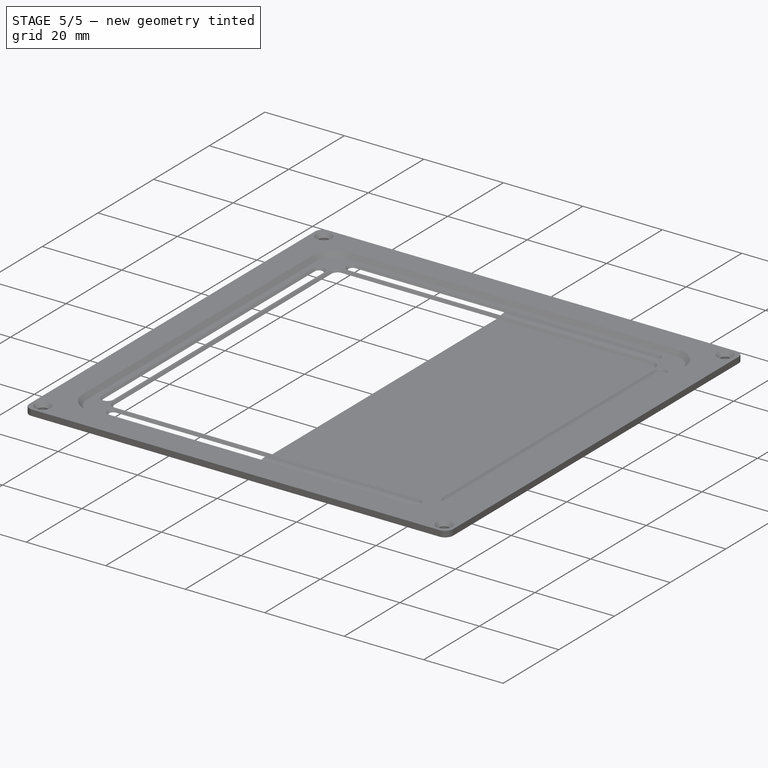
[diagram: stage 5 of 5 — iso view after this stage's code; geometry added in this stage tinted green]
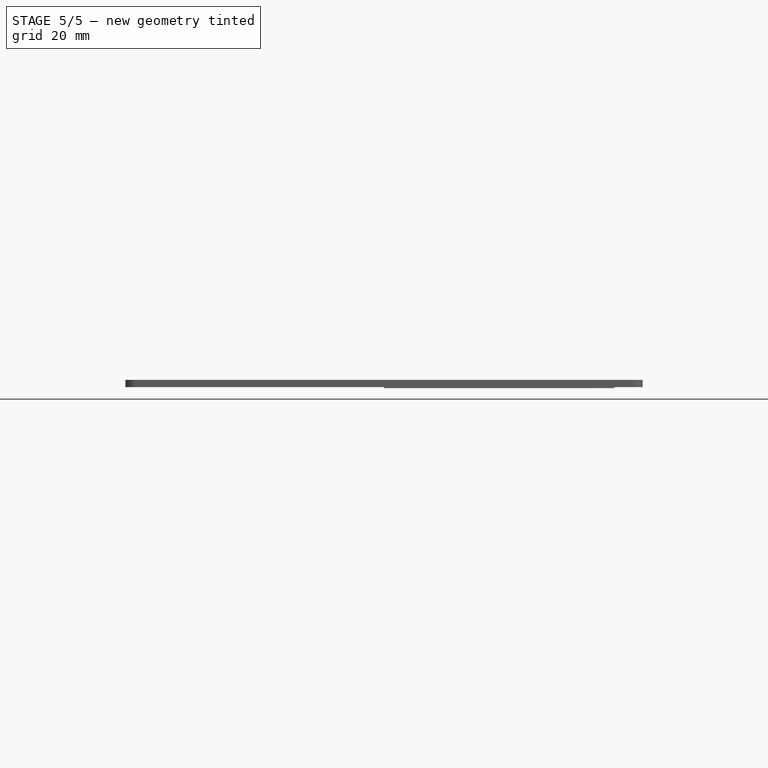
[diagram: stage 5 of 5 — front view after this stage's code; geometry added in this stage tinted green]
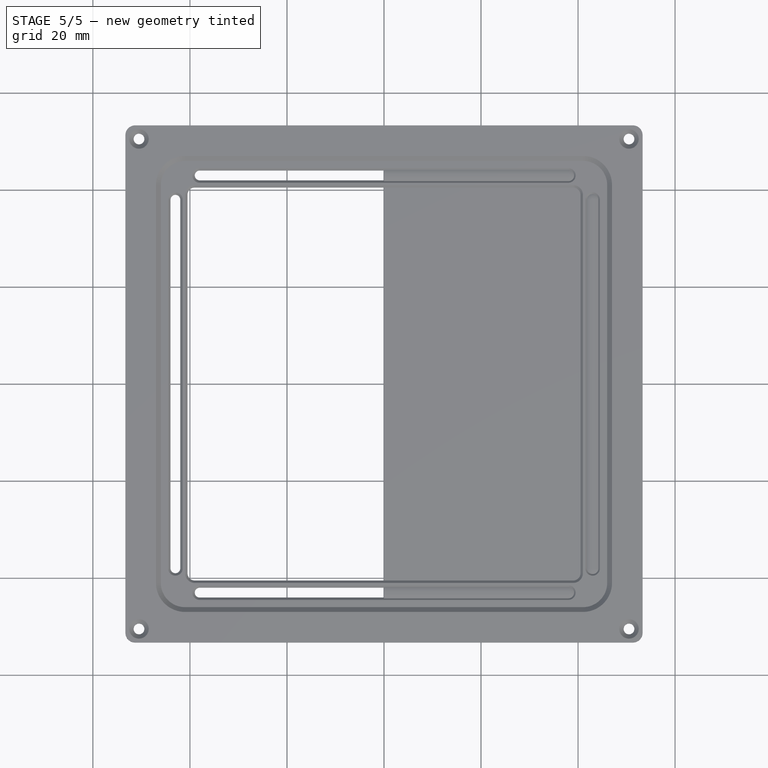
[diagram: stage 5 of 5 — top view after this stage's code; geometry added in this stage tinted green]
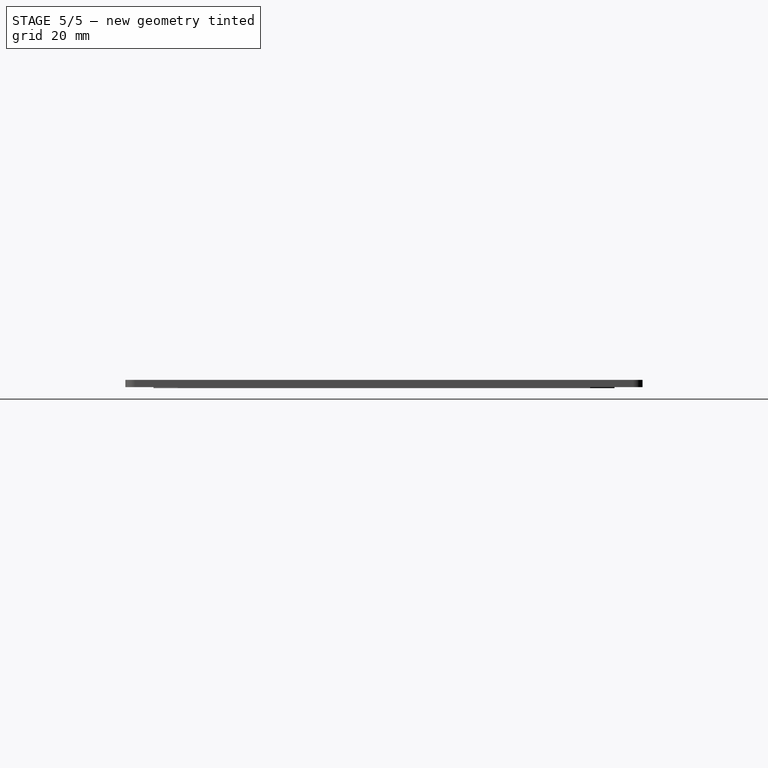
[diagram: stage 5 of 5 — right view after this stage's code; geometry added in this stage tinted green]
FEATURE [Sketcher::SketchObject] Sketch
  FullyConstrained = true
  MapMode = 5
  Support = -> [XY_Plane]
  sketch-geometry (22):
    g0: LineSegment StartX=-51.3 StartY=53.3 StartZ=0 EndX=51.3 EndY=53.3 EndZ=0
    g1: LineSegment StartX=53.3 StartY=51.3 StartZ=0 EndX=53.3 EndY=-51.3 EndZ=0
    g2: LineSegment StartX=51.3 StartY=-53.3 StartZ=0 EndX=-51.3 EndY=-53.3 EndZ=0
    g3: LineSegment StartX=-53.3 StartY=-51.3 StartZ=0 EndX=-53.3 EndY=51.3 EndZ=0
    g4: ArcOfCircle CenterX=-51.3 CenterY=51.3 CenterZ=0 NormalX=0 NormalY=0 NormalZ=1 AngleXU=0 Radius=2 StartAngle=1.5708 EndAngle=3.14159
    g5: ArcOfCircle CenterX=51.3 CenterY=51.3 CenterZ=0 NormalX=0 NormalY=0 NormalZ=1 AngleXU=0 Radius=2 StartAngle=1e-16 EndAngle=1.5708
    g6: ArcOfCircle CenterX=51.3 CenterY=-51.3 CenterZ=0 NormalX=0 NormalY=0 NormalZ=1 AngleXU=0 Radius=2 StartAngle=4.71239 EndAngle=6.28319
    g7: ArcOfCircle CenterX=-51.3 CenterY=-51.3 CenterZ=0 NormalX=0 NormalY=0 NormalZ=1 AngleXU=0 Radius=2 StartAngle=3.14159 EndAngle=4.71239
    g8: LineSegment StartX=-51.3 StartY=51.3 StartZ=0 EndX=0 EndY=0 EndZ=0
    g9: LineSegment StartX=0 StartY=0 StartZ=0 EndX=51.3 EndY=51.3 EndZ=0
    g10: LineSegment StartX=0 StartY=0 StartZ=0 EndX=-51.3 EndY=-51.3 EndZ=0
    g11: LineSegment StartX=-41 StartY=46 StartZ=0 EndX=41 EndY=46 EndZ=0
    g12: LineSegment StartX=46 StartY=41 StartZ=0 EndX=46 EndY=-41 EndZ=0
    g13: LineSegment StartX=41 StartY=-46 StartZ=0 EndX=-41 EndY=-46 EndZ=0
    g14: LineSegment StartX=-46 StartY=-41 StartZ=0 EndX=-46 EndY=41 EndZ=0
    g15: ArcOfCircle CenterX=-41 CenterY=41 CenterZ=0 NormalX=0 NormalY=0 NormalZ=1 AngleXU=0 Radius=5 StartAngle=1.5708 EndAngle=3.14159
    g16: ArcOfCircle CenterX=41 CenterY=41 CenterZ=0 NormalX=0 NormalY=0 NormalZ=1 AngleXU=0 Radius=5 StartAngle=9e-15 EndAngle=1.5708
    g17: ArcOfCircle CenterX=41 CenterY=-41 CenterZ=0 NormalX=0 NormalY=0 NormalZ=1 AngleXU=0 Radius=5 StartAngle=4.71239 EndAngle=6.28319
    g18: ArcOfCircle CenterX=-41 CenterY=-41 CenterZ=0 NormalX=0 NormalY=0 NormalZ=1 AngleXU=0 Radius=5 StartAngle=3.14159 EndAngle=4.71239
    g19: LineSegment StartX=-41 StartY=41 StartZ=0 EndX=0 EndY=0 EndZ=0
    g20: LineSegment StartX=0 StartY=0 StartZ=0 EndX=41 EndY=41 EndZ=0
    g21: LineSegment StartX=-41 StartY=-41 StartZ=0 EndX=0 EndY=0 EndZ=0
  constraints (52):
    c: Horizontal(g0)
    c: Horizontal(g2)
    c: Vertical(g1)
    c: Vertical(g3)
    c: Tangent(g3,g4) = 1.5708
    c: Tangent(g0,g4) = 1.5708
    c: Tangent(g0,g5) = 1.5708
    c: Tangent(g1,g5) = 1.5708
    c: Tangent(g1,g6) = 1.5708
    c: Tangent(g2,g6) = 1.5708
    c: Tangent(g2,g7) = 1.5708
    c: Tangent(g3,g7) = 1.5708
    c: Coincident(g8,g4)
    c: Coincident(g8,g9)
    c: Coincident(g9,g5)
    c: Coincident(g8,g-1)
    c: Coincident(g10,g-1)
    c: Coincident(g10,g7)
    c: Equal(g10,g8)
    c: Equal(g8,g9)
    c: Equal(g0,g3)
    c: Equal(g4,g5)
    c: Equal(g5,g6)
    c: Equal(g6,g7)
    c: Radius(g4) = 2
    c: DistanceX(g3,g1) = 106.6
    c: Horizontal(g11)
    c: Horizontal(g13)
    c: Vertical(g12)
    c: Vertical(g14)
    c: Tangent(g14,g15) = 1.5708
    c: Tangent(g11,g15) = 1.5708
    c: Tangent(g11,g16) = 1.5708
    c: Tangent(g12,g16) = 1.5708
    c: Tangent(g12,g17) = 1.5708
    c: Tangent(g13,g17) = 1.5708
    c: Tangent(g13,g18) = 1.5708
    c: Tangent(g14,g18) = 1.5708
    c: Coincident(g19,g15)
    c: Coincident(g19,g-1)
    c: Coincident(g19,g20)
    c: Coincident(g20,g16)
    c: Coincident(g21,g18)
    c: Coincident(g21,g-1)
    c: Equal(g21,g19)
    c: Equal(g19,g20)
    c: Equal(g14,g11)
    c: Equal(g15,g16)
    c: Equal(g16,g17)
    c: Equal(g17,g18)
    c: Radius(g15) = 5
    c: DistanceX(g14,g12) = 92
FEATURE [PartDesign::Pad] Pad
  AllowMultiFace = false
  Direction = (1,1,1)
  Length = 1.5
  Length2 = 100
  Profile = -> Sketch
  Type = 0
FEATURE [PartDesign::Draft] Draft
  Angle = 45
  Base = -> Pad [Face15,Face14,Face16,Face13,Face12,Face11,Face10,Face9]
  BaseFeature = -> Pad
  NeutralPlane = -> Pad [Face17]
  Reversed = true
  SupportTransform = false
FEATURE [Sketcher::SketchObject] Sketch002
  FullyConstrained = true
  MapMode = 5
  Placement = pos=(0,0,1.5) rot=(0,0,1;0rad)
  Support = -> [Draft]
  sketch-geometry (9):
    g0: LineSegment StartX=-50.5 StartY=50.5 StartZ=0 EndX=-50.5 EndY=-50.5 EndZ=0
    g1: LineSegment StartX=-50.5 StartY=-50.5 StartZ=0 EndX=50.5 EndY=-50.5 EndZ=0
    g2: LineSegment StartX=50.5 StartY=-50.5 StartZ=0 EndX=50.5 EndY=50.5 EndZ=0
    g3: LineSegment StartX=50.5 StartY=50.5 StartZ=0 EndX=-50.5 EndY=50.5 EndZ=0
    g4: Circle CenterX=0 CenterY=0 CenterZ=0 NormalX=0 NormalY=0 NormalZ=1 AngleXU=0 Radius=71.4178
    g5: Circle CenterX=-50.5 CenterY=50.5 CenterZ=0 NormalX=0 NormalY=0 NormalZ=1 AngleXU=0 Radius=5
    g6: Circle CenterX=50.5 CenterY=50.5 CenterZ=0 NormalX=0 NormalY=0 NormalZ=1 AngleXU=0 Radius=5
    g7: Circle CenterX=50.5 CenterY=-50.5 CenterZ=0 NormalX=0 NormalY=0 NormalZ=1 AngleXU=0 Radius=5
    g8: Circle CenterX=-50.5 CenterY=-50.5 CenterZ=0 NormalX=0 NormalY=0 NormalZ=1 AngleXU=0 Radius=5
  constraints (22):
    c: Coincident(g0,g1)
    c: Coincident(g1,g2)
    c: Coincident(g2,g3)
    c: Coincident(g3,g0)
    c: Equal(g0,g1)
    c: Equal(g0,g2)
    c: Equal(g0,g3)
    c: PointOnObject(g0,g4)
    c: PointOnObject(g1,g4)
    c: PointOnObject(g2,g4)
    c: PointOnObject(g3,g4)
    c: Horizontal(g3)
    c: Coincident(g4,g-1)
    c: Coincident(g5,g0)
    c: Coincident(g6,g2)
    c: Coincident(g7,g1)
    c: Coincident(g8,g0)
    c: DistanceX(g3,g3) = 101
    c: Diameter(g5) = 10
    c: Equal(g5,g6)
    c: Equal(g5,g7)
    c: Equal(g5,g8)
FEATURE [PartDesign::Hole] Hole
  AllowMultiFace = false
  BaseFeature = -> Draft
  Depth = 25
  DepthType = 1
  Diameter = 2.2
  DrillForDepth = false
  DrillPoint = 0
  DrillPointAngle = 118
  HoleCutCountersinkAngle = 90
  HoleCutCustomValues = false
  HoleCutDepth = 0
  HoleCutDiameter = 4
  HoleCutType = 2
  ModelActualThread = false
  Profile = -> Sketch002
  Tapered = false
  TaperedAngle = 90
  ThreadAngle = 0
  ThreadClass = 0
  ThreadCutOffInner = 0
  ThreadCutOffOuter = 0
  ThreadDirection = 0
  ThreadFit = 0
  ThreadPitch = 0
  ThreadSize = 0
  ThreadType = 0
  Threaded = false
FEATURE [Sketcher::SketchObject] Sketch006
  FullyConstrained = false
  MapMode = 5
  Placement = pos=(0,0,0) rot=(0.57735,0.57735,0.57735;2.0944rad)
  Support = -> [YZ_Plane004]
  sketch-geometry (4):
    g0: LineSegment StartX=-101.625 StartY=62.8641 StartZ=0 EndX=191.048 EndY=62.8641 EndZ=0
    g1: LineSegment StartX=191.048 StartY=62.8641 StartZ=0 EndX=191.048 EndY=-52.4593 EndZ=0
    g2: LineSegment StartX=191.048 StartY=-52.4593 StartZ=0 EndX=-101.625 EndY=-52.4593 EndZ=0
    g3: LineSegment StartX=-101.625 StartY=-52.4593 StartZ=0 EndX=-101.625 EndY=62.8641 EndZ=0
  constraints (8):
    c: Coincident(g0,g1)
    c: Coincident(g1,g2)
    c: Coincident(g2,g3)
    c: Coincident(g3,g0)
    c: Horizontal(g0)
    c: Horizontal(g2)
    c: Vertical(g1)
    c: Vertical(g3)
FEATURE [PartDesign::Pocket] Pocket002
  BaseFeature = -> Pocket001
  Length = 5
  Length2 = 100
  Profile = -> Sketch006
  Type = 1
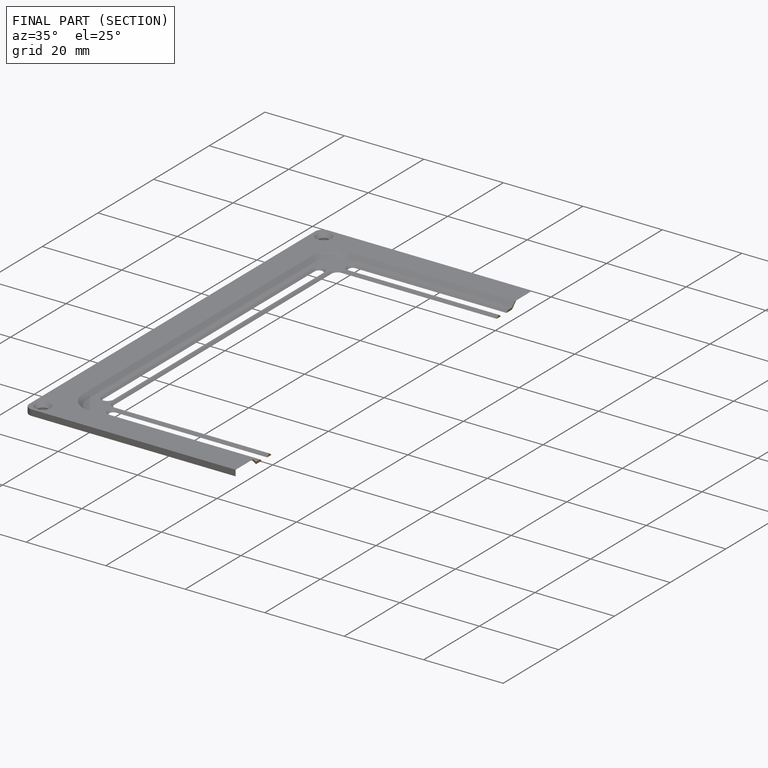
[diagram: finished part — half-section view (interior)]
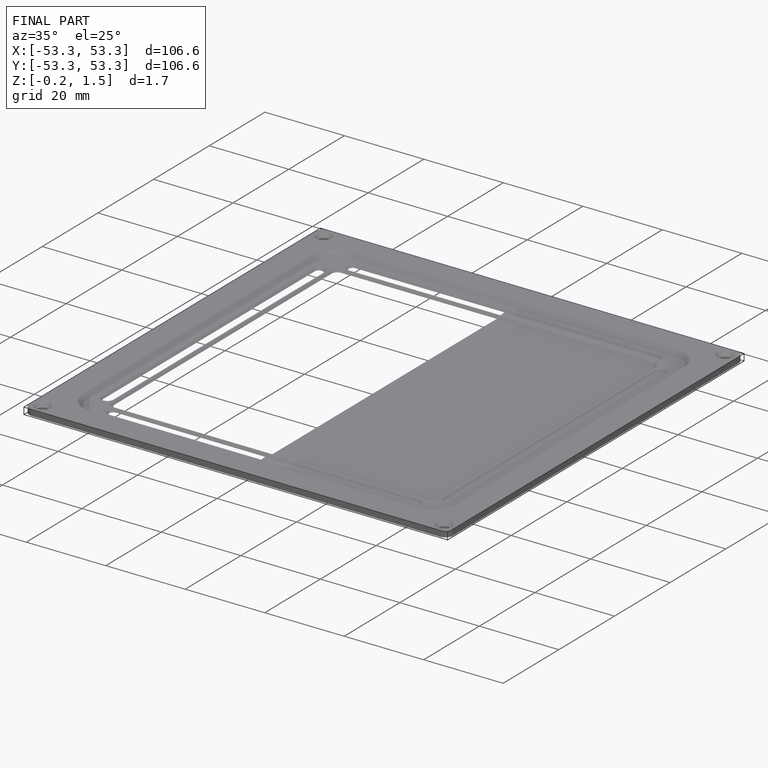
[diagram: finished part — iso view with bounding-box wireframe]
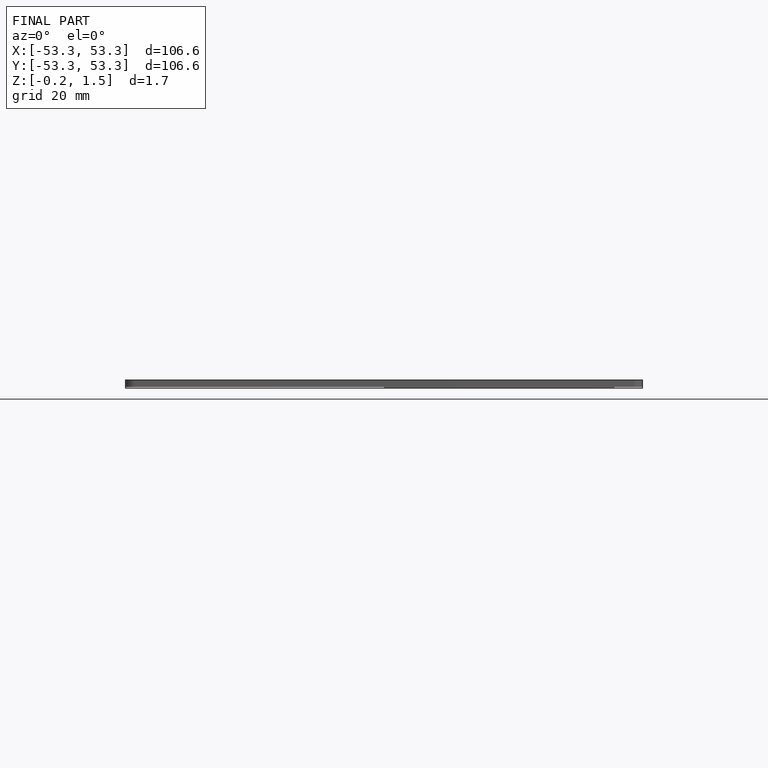
[diagram: finished part — front view with bounding-box wireframe]
